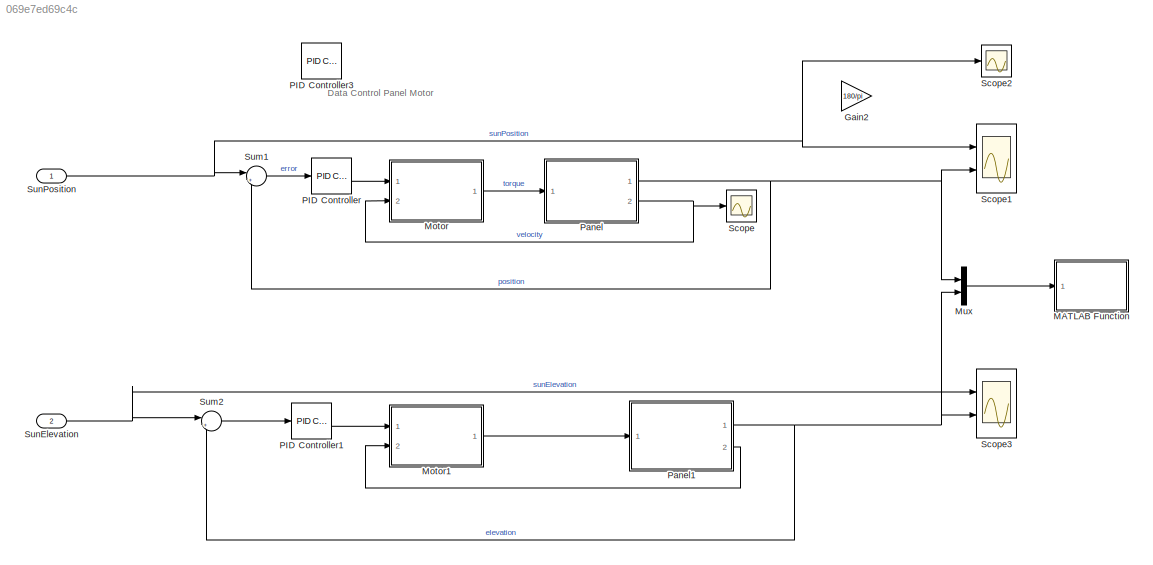
MODEL slx_069e7ed69c4c
KIND model
CONFIG AbsTol = auto
CONFIG EnableMultiTasking = off
CONFIG FixedStep = auto
CONFIG MaxStep = auto
CONFIG MinStep = auto
CONFIG RelTol = 1e-3
CONFIG SampleTimeConstraint = Unconstrained
CONFIG Solver = VariableStepAuto
CONFIG SolverName = VariableStepAuto
CONFIG StartTime = 0.0
CONFIG StopTime = 15*3600
BLOCK [Gain] Gain2
  Commented = on
  Gain = 180/pi
  OutDataTypeStr = Inherit: Inherit via internal rule
  ParamDataTypeStr = Inherit: Inherit via internal rule
  SaturateOnIntegerOverflow = off
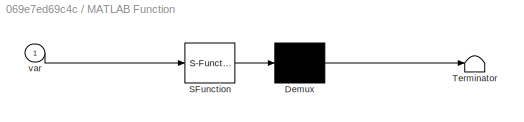
BLOCK [SubSystem] MATLAB Function
  Commented = on
  ErrorFcn = Stateflow.Translate.translate
  PermitHierarchicalResolution = ExplicitOnly
  Ports = [1]
  RequestExecContextInheritance = off
  SFBlockType = MATLAB Function
  TreatAsAtomicUnit = on
BLOCK [Demux] MATLAB Function/ Demux 
  Outputs = 1
  Ports = [1, 1]
BLOCK [S-Function] MATLAB Function/ SFunction 
  EnableBusSupport = on
  FunctionName = sf_sfun
  PortCounts = [1 1]
  Ports = [1, 1]
  SFcnIsStateOwnerBlock = off
  SFunctionDeploymentMode = off
  Tag = Stateflow S-Function panelMotor_data_control_2018 2
BLOCK [Terminator] MATLAB Function/ Terminator 
BLOCK [Inport] MATLAB Function/var
  IconDisplay = Port number
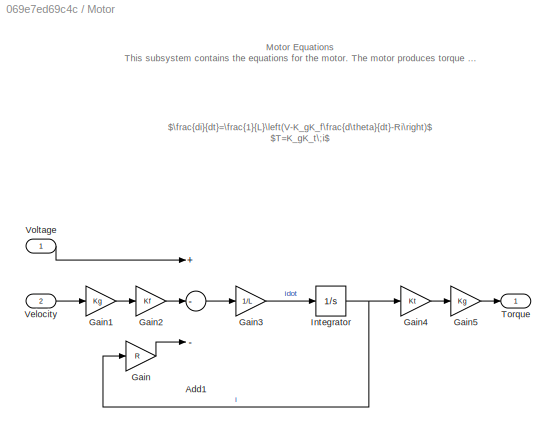
BLOCK [SubSystem] Motor
  Ports = [2, 1]
  RequestExecContextInheritance = off
BLOCK [Sum] Motor/Add1
  InputSameDT = off
  Inputs = +--
  OutDataTypeStr = Inherit: Inherit via internal rule
  Ports = [3, 1]
  SaturateOnIntegerOverflow = off
BLOCK [Gain] Motor/Gain
  Gain = R
  OutDataTypeStr = Inherit: Inherit via internal rule
  ParamDataTypeStr = Inherit: Inherit via internal rule
  SaturateOnIntegerOverflow = off
BLOCK [Gain] Motor/Gain1
  Gain = Kg
  OutDataTypeStr = Inherit: Inherit via internal rule
  ParamDataTypeStr = Inherit: Inherit via internal rule
  SaturateOnIntegerOverflow = off
BLOCK [Gain] Motor/Gain2
  Gain = Kf
  OutDataTypeStr = Inherit: Inherit via internal rule
  ParamDataTypeStr = Inherit: Inherit via internal rule
  SaturateOnIntegerOverflow = off
BLOCK [Gain] Motor/Gain3
  Gain = 1/L
  OutDataTypeStr = Inherit: Inherit via internal rule
  ParamDataTypeStr = Inherit: Inherit via internal rule
  SaturateOnIntegerOverflow = off
BLOCK [Gain] Motor/Gain4
  Gain = Kt
  OutDataTypeStr = Inherit: Inherit via internal rule
  ParamDataTypeStr = Inherit: Inherit via internal rule
  SaturateOnIntegerOverflow = off
BLOCK [Gain] Motor/Gain5
  Gain = Kg
  OutDataTypeStr = Inherit: Inherit via internal rule
  ParamDataTypeStr = Inherit: Inherit via internal rule
  SaturateOnIntegerOverflow = off
BLOCK [Integrator] Motor/Integrator
  Ports = [1, 1]
BLOCK [Outport] Motor/Torque
  IconDisplay = Port number
  VectorParamsAs1DForOutWhenUnconnected = on
BLOCK [Inport] Motor/Velocity
  IconDisplay = Port number
  Port = 2
BLOCK [Inport] Motor/Voltage
  IconDisplay = Port number
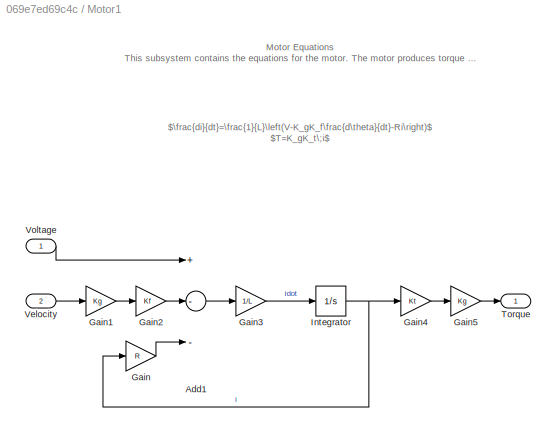
BLOCK [SubSystem] Motor1
  Ports = [2, 1]
  RequestExecContextInheritance = off
BLOCK [Sum] Motor1/Add1
  InputSameDT = off
  Inputs = +--
  OutDataTypeStr = Inherit: Inherit via internal rule
  Ports = [3, 1]
  SaturateOnIntegerOverflow = off
BLOCK [Gain] Motor1/Gain
  Gain = R
  OutDataTypeStr = Inherit: Inherit via internal rule
  ParamDataTypeStr = Inherit: Inherit via internal rule
  SaturateOnIntegerOverflow = off
BLOCK [Gain] Motor1/Gain1
  Gain = Kg
  OutDataTypeStr = Inherit: Inherit via internal rule
  ParamDataTypeStr = Inherit: Inherit via internal rule
  SaturateOnIntegerOverflow = off
BLOCK [Gain] Motor1/Gain2
  Gain = Kf
  OutDataTypeStr = Inherit: Inherit via internal rule
  ParamDataTypeStr = Inherit: Inherit via internal rule
  SaturateOnIntegerOverflow = off
BLOCK [Gain] Motor1/Gain3
  Gain = 1/L
  OutDataTypeStr = Inherit: Inherit via internal rule
  ParamDataTypeStr = Inherit: Inherit via internal rule
  SaturateOnIntegerOverflow = off
BLOCK [Gain] Motor1/Gain4
  Gain = Kt
  OutDataTypeStr = Inherit: Inherit via internal rule
  ParamDataTypeStr = Inherit: Inherit via internal rule
  SaturateOnIntegerOverflow = off
BLOCK [Gain] Motor1/Gain5
  Gain = Kg
  OutDataTypeStr = Inherit: Inherit via internal rule
  ParamDataTypeStr = Inherit: Inherit via internal rule
  SaturateOnIntegerOverflow = off
BLOCK [Integrator] Motor1/Integrator
  Ports = [1, 1]
BLOCK [Outport] Motor1/Torque
  IconDisplay = Port number
  VectorParamsAs1DForOutWhenUnconnected = on
BLOCK [Inport] Motor1/Velocity
  IconDisplay = Port number
  Port = 2
BLOCK [Inport] Motor1/Voltage
  IconDisplay = Port number
BLOCK [Mux] Mux
  Commented = on
  DisplayOption = bar
  Inputs = 2
  Ports = [2, 1]
BLOCK [Reference] PID Controller  REF=simulink/Continuous/PID Controller
  Ports = [1, 1]
  SourceBlock = simulink/Continuous/PID Controller
  SourceProductBaseCode = SL
  SourceProductName = Simulink
  SourceType = PID 1dof
BLOCK [Reference] PID Controller1  REF=simulink/Continuous/PID Controller
  Ports = [1, 1]
  SourceBlock = simulink/Continuous/PID Controller
  SourceProductBaseCode = SL
  SourceProductName = Simulink
  SourceType = PID 1dof
BLOCK [Reference] PID Controller3  REF=simulink/Continuous/PID Controller
  Commented = on
  Ports = [1, 1]
  SourceBlock = simulink/Continuous/PID Controller
  SourceProductBaseCode = SL
  SourceProductName = Simulink
  SourceType = PID 1dof
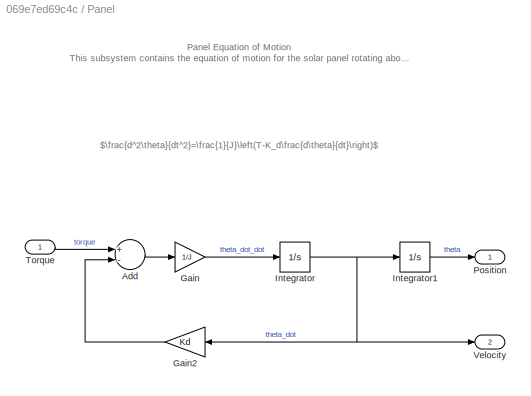
BLOCK [SubSystem] Panel
  Ports = [1, 2]
  RequestExecContextInheritance = off
BLOCK [Sum] Panel/Add
  InputSameDT = off
  Inputs = +-
  OutDataTypeStr = Inherit: Inherit via internal rule
  Ports = [2, 1]
  SaturateOnIntegerOverflow = off
BLOCK [Gain] Panel/Gain
  Gain = 1/J
  OutDataTypeStr = Inherit: Inherit via internal rule
  ParamDataTypeStr = Inherit: Inherit via internal rule
  SaturateOnIntegerOverflow = off
BLOCK [Gain] Panel/Gain2
  Gain = Kd
  OutDataTypeStr = Inherit: Inherit via internal rule
  ParamDataTypeStr = Inherit: Inherit via internal rule
  SaturateOnIntegerOverflow = off
BLOCK [Integrator] Panel/Integrator
  Ports = [1, 1]
BLOCK [Integrator] Panel/Integrator1
  Ports = [1, 1]
BLOCK [Outport] Panel/Position
  IconDisplay = Port number
  VectorParamsAs1DForOutWhenUnconnected = on
BLOCK [Inport] Panel/Torque
  IconDisplay = Port number
BLOCK [Outport] Panel/Velocity
  IconDisplay = Port number
  Port = 2
  VectorParamsAs1DForOutWhenUnconnected = on
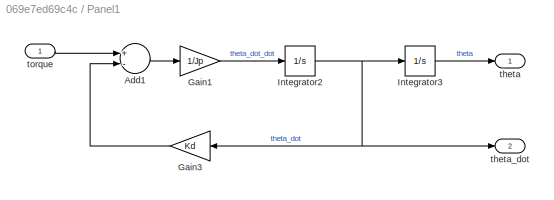
BLOCK [SubSystem] Panel1
  Ports = [1, 2]
  RequestExecContextInheritance = off
BLOCK [Sum] Panel1/Add1
  InputSameDT = off
  Inputs = +-
  OutDataTypeStr = Inherit: Inherit via internal rule
  Ports = [2, 1]
  SaturateOnIntegerOverflow = off
BLOCK [Gain] Panel1/Gain1
  Gain = 1/Jp
  OutDataTypeStr = Inherit: Inherit via internal rule
  ParamDataTypeStr = Inherit: Inherit via internal rule
  SaturateOnIntegerOverflow = off
BLOCK [Gain] Panel1/Gain3
  Gain = Kd
  OutDataTypeStr = Inherit: Inherit via internal rule
  ParamDataTypeStr = Inherit: Inherit via internal rule
  SaturateOnIntegerOverflow = off
BLOCK [Integrator] Panel1/Integrator2
  Ports = [1, 1]
BLOCK [Integrator] Panel1/Integrator3
  Ports = [1, 1]
BLOCK [Outport] Panel1/theta
  IconDisplay = Port number
BLOCK [Outport] Panel1/theta_dot
  IconDisplay = Port number
  Port = 2
BLOCK [Inport] Panel1/torque
  IconDisplay = Port number
BLOCK [Scope] Scope
  Floating = off
  NumInputPorts = 1
  Ports = [1]
  ScopeSpecificationString = Simulink.scopes.TimeScopeBlockCfg('CurrentConfiguration', extmgr.ConfigurationSet(extmgr.Configuration('Core','General UI',true),extmgr.Configuration('Core','Source UI',true),extmgr.Configuration('Sources','WiredSimulink',true,'DataLoggingVariableName','ScopeData7'),extmgr.Configuration('Visuals','Time Domain',true,'SerializedDisplays',{struct('MinYLimReal','-0.32515','MaxYLimReal','1.94208','YLab...<+1437ch>
BLOCK [Scope] Scope1
  Floating = off
  NumInputPorts = 2
  Ports = [2]
  ScopeSpecificationString = Simulink.scopes.TimeScopeBlockCfg('CurrentConfiguration', extmgr.ConfigurationSet(extmgr.Configuration('Core','General UI',true),extmgr.Configuration('Core','Source UI',true),extmgr.Configuration('Sources','WiredSimulink',true,'DataLoggingVariableName','ScopeData6','DataLogging',true,'DataLoggingLimitDataPoints',true,'DataLoggingMaxPoints','151','DataLoggingSaveFormat','StructureWithTime'),extmgr....<+1802ch>
BLOCK [Scope] Scope2
  Floating = off
  NumInputPorts = 1
  Ports = [1]
  ScopeSpecificationString = Simulink.scopes.TimeScopeBlockCfg('CurrentConfiguration', extmgr.ConfigurationSet(extmgr.Configuration('Core','General UI',true),extmgr.Configuration('Core','Source UI',true),extmgr.Configuration('Sources','WiredSimulink',true,'DataLoggingVariableName','ScopeData1'),extmgr.Configuration('Visuals','Time Domain',true,'SerializedDisplays',{struct('MinYLimReal','1.019068','MaxYLimReal','1.0191','YLabe...<+1438ch>
BLOCK [Scope] Scope3
  Floating = off
  NumInputPorts = 2
  Ports = [2]
  ScopeSpecificationString = Simulink.scopes.TimeScopeBlockCfg('CurrentConfiguration', extmgr.ConfigurationSet(extmgr.Configuration('Core','General UI',true),extmgr.Configuration('Core','Source UI',true),extmgr.Configuration('Sources','WiredSimulink',true,'DataLoggingVariableName','ScopeData2','DataLogging',true,'DataLoggingLimitDataPoints',true,'DataLoggingMaxPoints','151','DataLoggingSaveFormat','Structure'),extmgr.Configur...<+1830ch>
BLOCK [Sum] Sum1
  IconShape = round
  InputSameDT = off
  Inputs = |+-
  OutDataTypeStr = Inherit: Inherit via internal rule
  Ports = [2, 1]
  SaturateOnIntegerOverflow = off
BLOCK [Sum] Sum2
  IconShape = round
  InputSameDT = off
  Inputs = |+-
  OutDataTypeStr = Inherit: Inherit via internal rule
  Ports = [2, 1]
  SaturateOnIntegerOverflow = off
BLOCK [Inport] SunElevation
  IconDisplay = Port number
  Port = 2
BLOCK [Inport] SunPosition
  IconDisplay = Port number
ANNOTATION (root): Data Control Panel Motor
ANNOTATION Motor: Motor Equations This subsystem contains the equations for the motor. The motor produces torque to rotate the solar panel.
ANNOTATION Motor: $\frac{di}{dt}=\frac{1}{L}\left(V-K_gK_f\frac{d\theta}{dt}-Ri\right)$ $T=K_gK_t\;i$
ANNOTATION Motor1: Motor Equations This subsystem contains the equations for the motor. The motor produces torque to rotate the solar panel.
ANNOTATION Motor1: $\frac{di}{dt}=\frac{1}{L}\left(V-K_gK_f\frac{d\theta}{dt}-Ri\right)$ $T=K_gK_t\;i$
ANNOTATION Panel: Panel Equation of Motion This subsystem contains the equation of motion for the solar panel rotating about its central post. The panel's rotation is driven by torque from the motor.
ANNOTATION Panel: $\frac{d^2\theta}{dt^2}=\frac{1}{J}\left(T-K_d\frac{d\theta}{dt}\right)$
LINE Motor/Add1:1 -> Motor/Gain3:1
LINE Motor/Gain1:1 -> Motor/Gain2:1
LINE Motor/Gain2:1 -> Motor/Add1:2
LINE Motor/Gain3:1 -> Motor/Integrator:1
LINE Motor/Gain4:1 -> Motor/Gain5:1
LINE Motor/Gain5:1 -> Motor/Torque:1
LINE Motor/Gain:1 -> Motor/Add1:3
NET Motor/Integrator:1 -> Motor/Gain4:1, Motor/Gain:1
LINE Motor/Velocity:1 -> Motor/Gain1:1
LINE Motor/Voltage:1 -> Motor/Add1:1
LINE Motor1/Add1:1 -> Motor1/Gain3:1
LINE Motor1/Gain1:1 -> Motor1/Gain2:1
LINE Motor1/Gain2:1 -> Motor1/Add1:2
LINE Motor1/Gain3:1 -> Motor1/Integrator:1
LINE Motor1/Gain4:1 -> Motor1/Gain5:1
LINE Motor1/Gain5:1 -> Motor1/Torque:1
LINE Motor1/Gain:1 -> Motor1/Add1:3
NET Motor1/Integrator:1 -> Motor1/Gain4:1, Motor1/Gain:1
LINE Motor1/Velocity:1 -> Motor1/Gain1:1
LINE Motor1/Voltage:1 -> Motor1/Add1:1
LINE Motor1:1 -> Panel1:1
LINE Motor:1 -> Panel:1
LINE Mux:1 -> MATLAB Function:1
LINE PID Controller1:1 -> Motor1:1
LINE PID Controller:1 -> Motor:1
LINE Panel/Add:1 -> Panel/Gain:1
LINE Panel/Gain2:1 -> Panel/Add:2
LINE Panel/Gain:1 -> Panel/Integrator:1
LINE Panel/Integrator1:1 -> Panel/Position:1
NET Panel/Integrator:1 -> Panel/Gain2:1, Panel/Integrator1:1, Panel/Velocity:1
LINE Panel/Torque:1 -> Panel/Add:1
LINE Panel1/Add1:1 -> Panel1/Gain1:1
LINE Panel1/Gain1:1 -> Panel1/Integrator2:1
LINE Panel1/Gain3:1 -> Panel1/Add1:2
NET Panel1/Integrator2:1 -> Panel1/Gain3:1, Panel1/Integrator3:1, Panel1/theta_dot:1
LINE Panel1/Integrator3:1 -> Panel1/theta:1
LINE Panel1/torque:1 -> Panel1/Add1:1
NET Panel1:1 -> Mux:2, Scope3:2, Sum2:2
LINE Panel1:2 -> Motor1:2
NET Panel:1 -> Mux:1, Scope1:2, Sum1:2
NET Panel:2 -> Motor:2, Scope:1
LINE Sum1:1 -> PID Controller:1
LINE Sum2:1 -> PID Controller1:1
NET SunElevation:1 -> Scope3:1, Sum2:1
NET SunPosition:1 -> Scope1:1, Scope2:1, Sum1:1
note: NET lines group one-source signal fan-out (src -> all destinations, sorted); 1:1 wires keep LINE
CHART MATLAB Function states=1 transitions=1
  STATE_LABEL 'eML_blk_kernel()'
  STATE_LABEL 'SCRIPT:\nfunction fcn(var)\n\nposition = var(0);\nelevation = var(1);\n\nplot3(sunTime, rad2deg(position), rad2deg(elevation))\n'
